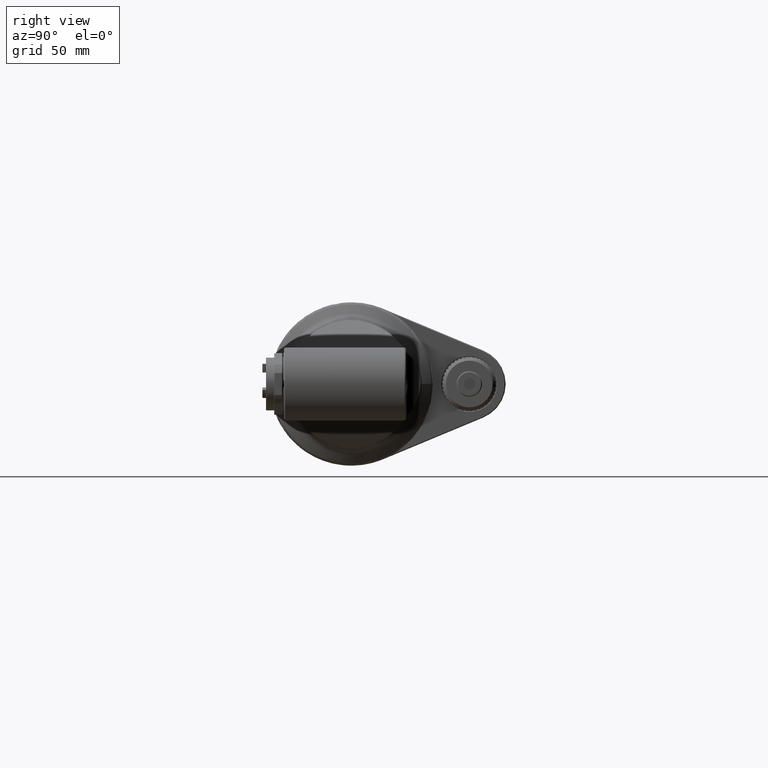
[diagram: clean part render]
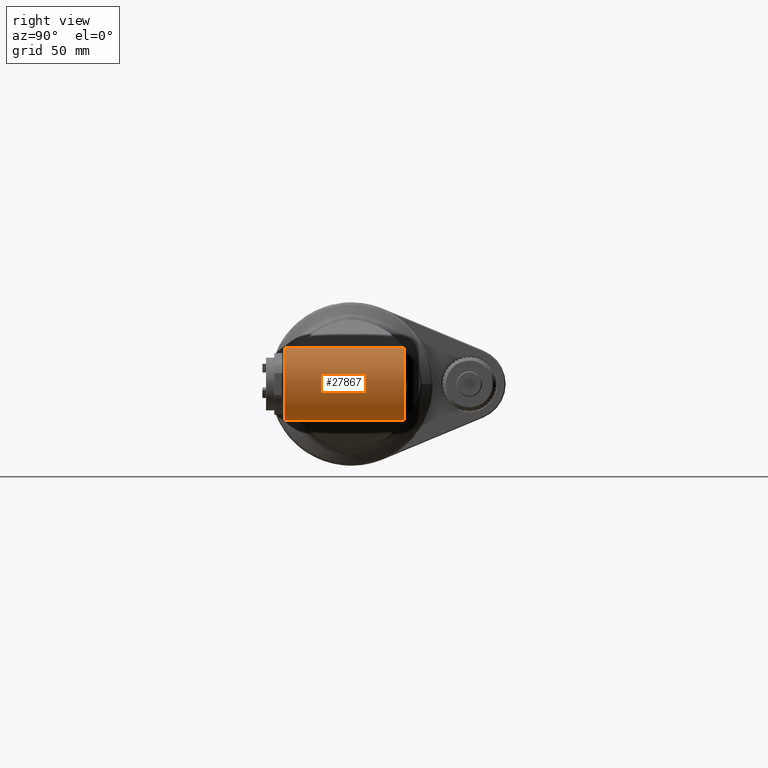
[diagram: same view with one face highlighted and labeled with its STEP entity id]
A machine part, right view. The second image highlights one B-rep face of the part: STEP entity #27867.
In plain terms, the highlighted cylindrical surface (partial cylindrical patch) has radius 25 mm, axis along (-0, 1, -0).
Its self-contained STEP definition (entity closure, byte-faithful):
#1628=CIRCLE('',#29563,25.);
#1679=CIRCLE('',#30150,25.);
#2209=CYLINDRICAL_SURFACE('',#30149,25.);
#3426=FACE_OUTER_BOUND('',#5098,.T.);
#5098=EDGE_LOOP('',(#23742,#23743,#23744,#23745));
#7716=LINE('',#54779,#10320);
#7717=LINE('',#54782,#10321);
#10320=VECTOR('',#36701,10.);
#10321=VECTOR('',#36704,10.);
#11902=VERTEX_POINT('',#50870);
#11903=VERTEX_POINT('',#50874);
#12838=VERTEX_POINT('',#54775);
#12839=VERTEX_POINT('',#54781);
#15155=EDGE_CURVE('',#11903,#11902,#1628,.T.);
#16582=EDGE_CURVE('',#11902,#12838,#7716,.T.);
#16583=EDGE_CURVE('',#11903,#12839,#7717,.T.);
#16584=EDGE_CURVE('',#12838,#12839,#1679,.T.);
#23742=ORIENTED_EDGE('',*,*,#16583,.F.);
#23743=ORIENTED_EDGE('',*,*,#15155,.T.);
#23744=ORIENTED_EDGE('',*,*,#16582,.T.);
#23745=ORIENTED_EDGE('',*,*,#16584,.T.);
#27867=ADVANCED_FACE('',(#3426),#2209,.T.);
#29563=AXIS2_PLACEMENT_3D('',#50876,#34272,#34273);
#30149=AXIS2_PLACEMENT_3D('',#54780,#36702,#36703);
#30150=AXIS2_PLACEMENT_3D('',#54783,#36705,#36706);
#34272=DIRECTION('center_axis',(1.,0.,0.));
#34273=DIRECTION('ref_axis',(0.,0.6,-0.8));
#36701=DIRECTION('',(1.,0.,0.));
#36702=DIRECTION('center_axis',(1.,0.,0.));
#36703=DIRECTION('ref_axis',(0.,0.,-1.));
#36704=DIRECTION('',(1.,0.,0.));
#36705=DIRECTION('center_axis',(-1.,0.,0.));
#36706=DIRECTION('ref_axis',(0.,0.6,0.8));
#50870=CARTESIAN_POINT('',(-36.4999857299437,275.249980541283,20.0000064861718));
#50874=CARTESIAN_POINT('',(-36.4999857300066,275.249978594772,-20.000007134954));
#50876=CARTESIAN_POINT('Origin',(-36.49997145977,260.25,-6.883382752676E-14));
#54775=CARTESIAN_POINT('',(29.4999857166999,275.249978574818,20.0000071416077));
#54779=CARTESIAN_POINT('',(-40.,275.25,20.));
#54780=CARTESIAN_POINT('Origin',(-40.,260.25,0.));
#54781=CARTESIAN_POINT('',(29.4999857167054,275.249978574818,-20.0000071416113));
#54782=CARTESIAN_POINT('',(-40.,275.25,-20.));
#54783=CARTESIAN_POINT('Origin',(29.49997143315,260.25,5.528910662633E-14));